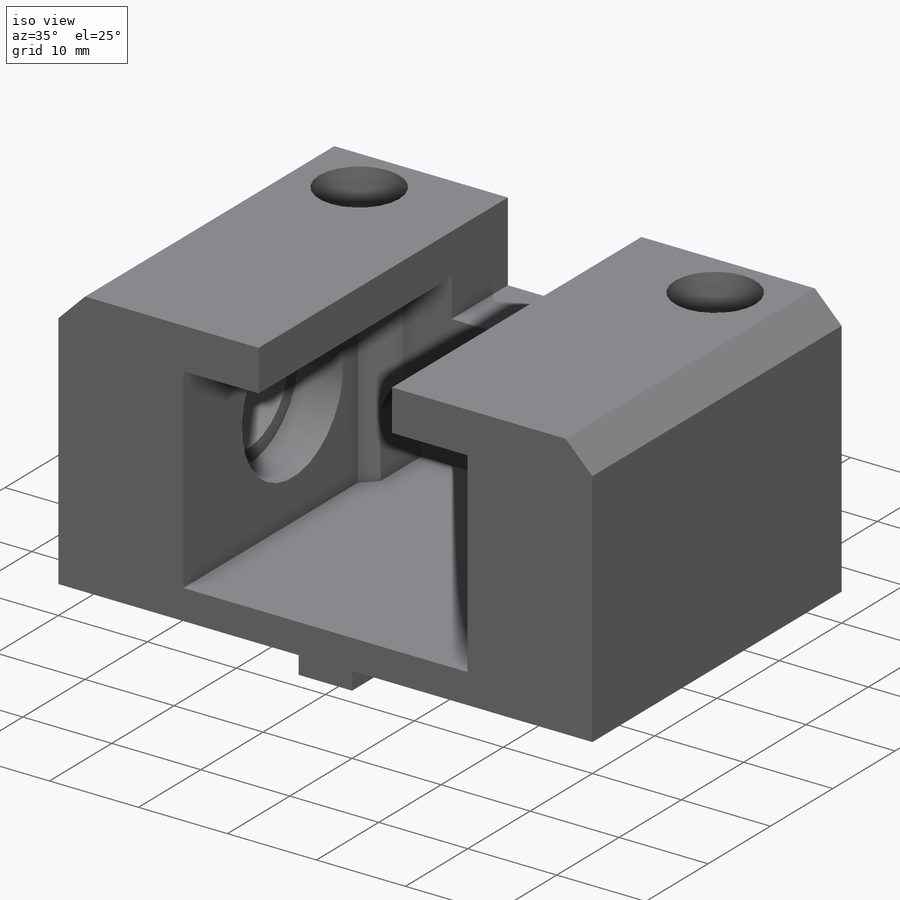
[diagram: iso view]
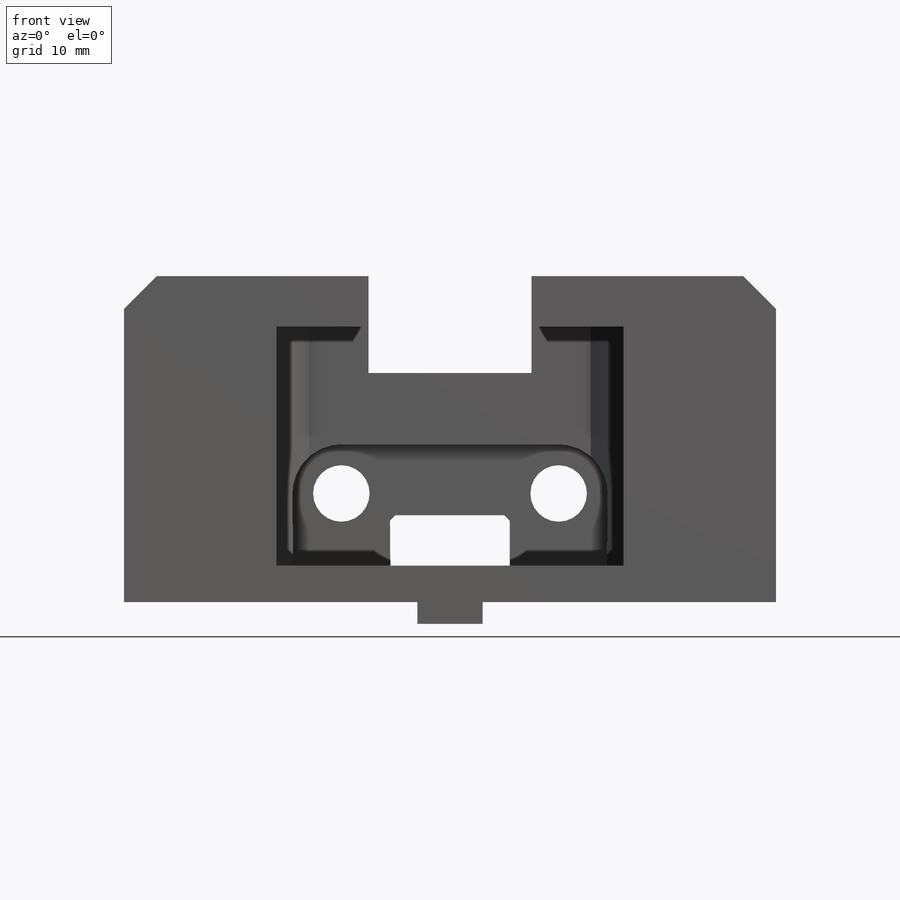
[diagram: front view]
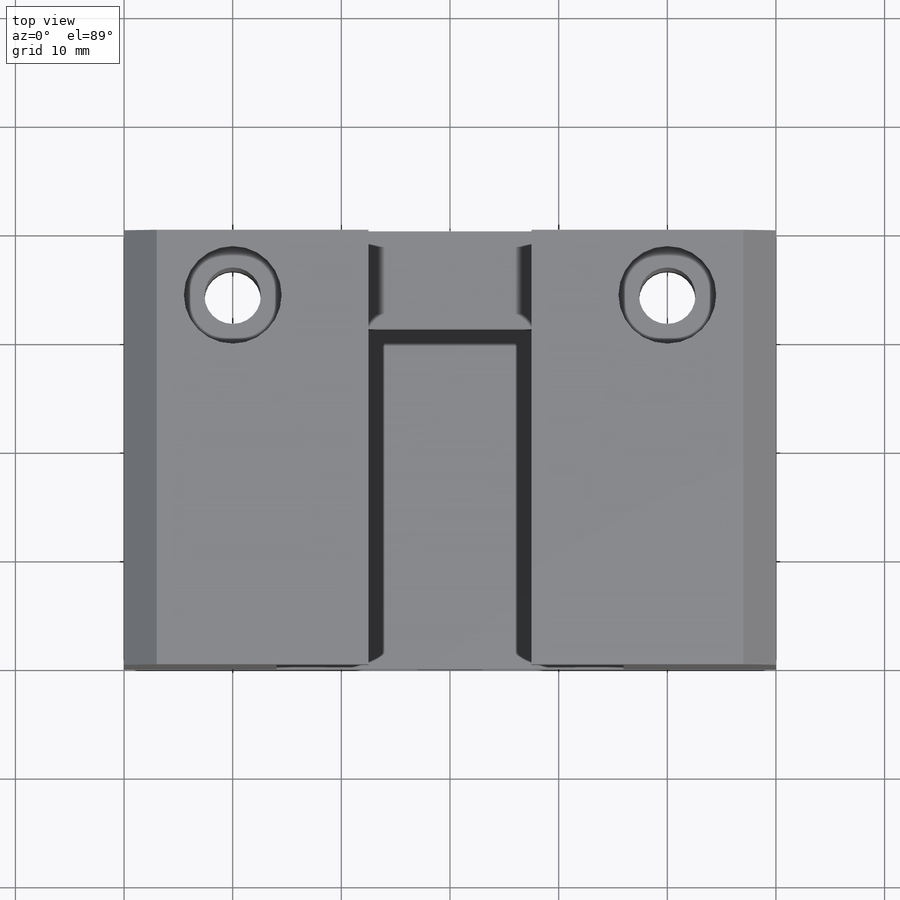
[diagram: top view]
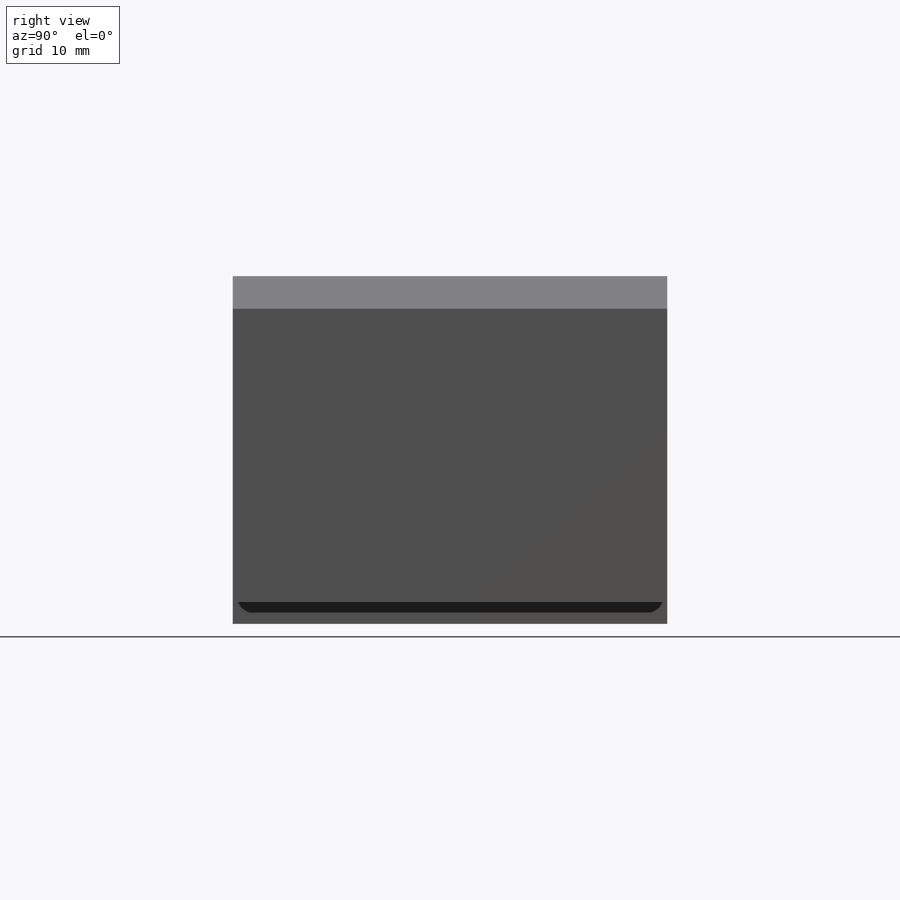
[diagram: right view]
SOLIDWORKS PART (.sldprt)
format: sldprt  version: not decoded by parser v0  size: 435,200 bytes
history: native  units: mm
features: sketch x12, cut_extrude x9, extrude x3, chamfer x2, material x1 (+16 scaffold rows collapsed)
feature tree (43):
  scaffold x16  (default folders/planes/origin — collapsed)
  material  "Material <not specified>"
  sketch  "Sketch1"  dims[c1.D1=1.0mm c1.D6=1.0mm c2.D1=1.0mm c2.D2=7.0mm c2.D3=0.5mm c2.D12=0.5mm c3.D2=15.0mm c3.D4=60.0mm c3.D5=30.0mm c3.D6=7.5mm c3.D7=10.0mm c3.D8=10.0mm c3.D9=22.0mm c3.D1=0.5mm]
  extrude  "Boss-Extrude1"  Depth=40mm
  sketch  "Sketch2"  dims[c1.D2=1.0mm c1.D3=1.0mm c2.D2=6.0mm c2.D1=0.5mm c2.D11=0.5mm c2.D3=11.0mm c2.D4=5.5mm c2.D5=6.5mm c3.D2=5.0mm c3.D5=14.0mm c3.D1=0.5mm c4.D2=0.5mm]
  extrude  "Boss-Extrude2"  Depth=9mm
  sketch  "Sketch3"  dims[D1=9.0mm]
  cut_extrude  "Cut-Extrude1"  Depth=5mm
  sketch  "Sketch4"  dims[D1=5.2mm D4=5.2mm D2=6.0mm D3=20.0mm]
  cut_extrude  "Cut-Extrude2"  [1 undecoded]
  chamfer  "Chamfer1"  Distance=3mm Angle=45deg
  sketch  "Sketch5"  dims[D1=13.0mm D2=17.5mm D3=16.0mm]
  cut_extrude  "Cut-Extrude3"  Depth=55mm
  sketch  "Sketch6"  dims[D1=16.25mm]
  cut_extrude  "Cut-Extrude4"  Depth=5mm
  sketch  "Sketch7"  dims[D1=16.25mm]
  cut_extrude  "Cut-Extrude5"  Depth=5mm
  sketch  "Sketch8"  dims[D1=16.25mm]
  cut_extrude  "Cut-Extrude6"  Depth=5mm
  sketch  "Sketch9"  dims[D1=6.0mm]
  cut_extrude  "Cut-Extrude7"  Depth=4mm
  chamfer  "Chamfer2"  Distance=3mm Angle=45deg
  sketch  "Sketch10"  dims[D1=3.0mm]
  extrude  "Boss-Extrude3"  Depth=2mm
  sketch  "Sketch11"
  cut_extrude  "Cut-Extrude8"  [1 undecoded]
  sketch  "Sketch13"
  cut_extrude  "Cut-Extrude9"  Depth=1mm
decode coverage: 22 of 26 modeling features carry decoded parameters
note: 2 parameter values undecoded
note: suppression state not decoded; provenance and decode notes live in map.json
